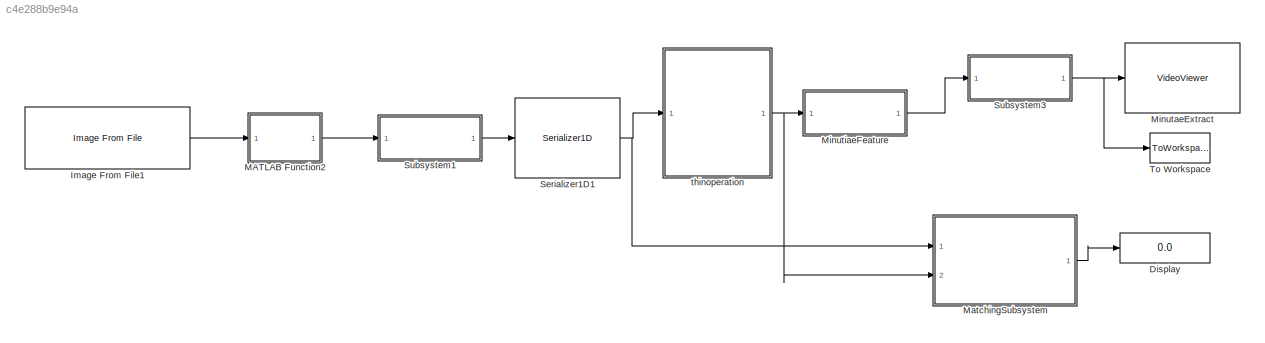
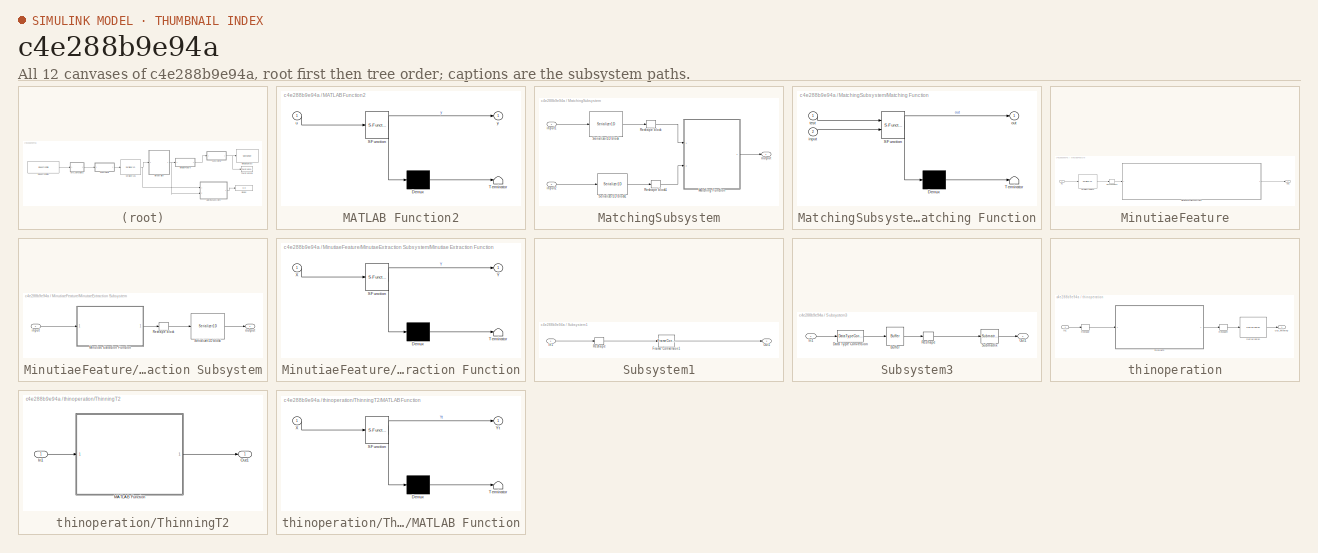
[diagram: thumbnail index - all 12 canvases of the model, root first then tree order]
MODEL slx_c4e288b9e94a
KIND model
CONFIG AbsTol = auto
CONFIG EnableMultiTasking = off
CONFIG FixedStep = auto
CONFIG MaxStep = auto
CONFIG MinStep = auto
CONFIG RelTol = 1e-3
CONFIG SampleTimeConstraint = Unconstrained
CONFIG Solver = FixedStepDiscrete
CONFIG SolverName = FixedStepDiscrete
CONFIG StartTime = 0.0
CONFIG StopTime = 1
BLOCK [Display] Display
  Decimation = 1
  Ports = [1]
BLOCK [Reference] Image From File1  REF=visionsources/Image From File
  Ports = [0, 1]
  SourceBlock = visionsources/Image From File
  SourceProductBaseCode = VP
  SourceProductName = Computer Vision System Toolbox
  SourceType = Image From File
  Tag = vipblks_nd
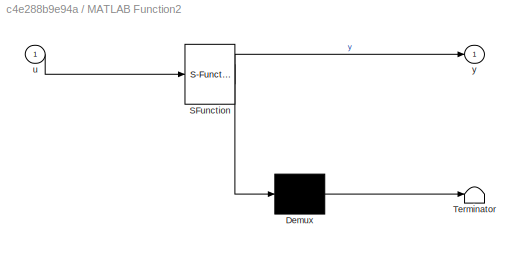
BLOCK [SubSystem] MATLAB Function2
  ErrorFcn = Stateflow.Translate.translate
  PermitHierarchicalResolution = ExplicitOnly
  Ports = [1, 1]
  RequestExecContextInheritance = off
  SFBlockType = MATLAB Function
  TreatAsAtomicUnit = on
BLOCK [Demux] MATLAB Function2/ Demux 
  Outputs = 1
  Ports = [1, 1]
BLOCK [S-Function] MATLAB Function2/ SFunction 
  EnableBusSupport = on
  FunctionName = sf_sfun
  PortCounts = [1 2]
  Ports = [1, 2]
  SFcnIsStateOwnerBlock = off
  SFunctionDeploymentMode = off
  Tag = Stateflow S-Function match_141121 1
BLOCK [Terminator] MATLAB Function2/ Terminator 
BLOCK [Inport] MATLAB Function2/u
  IconDisplay = Port number
BLOCK [Outport] MATLAB Function2/y
  IconDisplay = Port number
BLOCK [SubSystem] MatchingSubsystem
  Ports = [2, 1]
  RequestExecContextInheritance = off
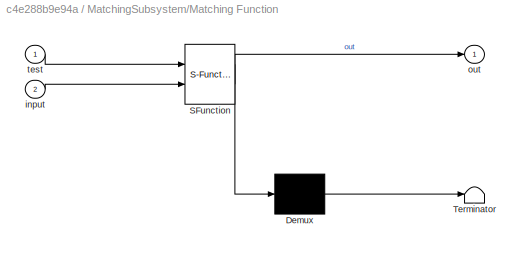
BLOCK [SubSystem] MatchingSubsystem/Matching Function
  ErrorFcn = Stateflow.Translate.translate
  PermitHierarchicalResolution = ExplicitOnly
  Ports = [2, 1]
  RequestExecContextInheritance = off
  SFBlockType = MATLAB Function
  TreatAsAtomicUnit = on
BLOCK [Demux] MatchingSubsystem/Matching Function/ Demux 
  Outputs = 1
  Ports = [1, 1]
BLOCK [S-Function] MatchingSubsystem/Matching Function/ SFunction 
  EnableBusSupport = on
  FunctionName = sf_sfun
  PortCounts = [2 2]
  Ports = [2, 2]
  SFcnIsStateOwnerBlock = off
  SFunctionDeploymentMode = off
  Tag = Stateflow S-Function match_141121 3
BLOCK [Terminator] MatchingSubsystem/Matching Function/ Terminator 
BLOCK [Inport] MatchingSubsystem/Matching Function/input
  IconDisplay = Port number
  Port = 2
BLOCK [Outport] MatchingSubsystem/Matching Function/out
  IconDisplay = Port number
BLOCK [Inport] MatchingSubsystem/Matching Function/test
  IconDisplay = Port number
BLOCK [Reshape] MatchingSubsystem/Reshape block
  OutputDimensionality = Customize
  OutputDimensions = [128,64]
  Ports = [1, 1]
BLOCK [Reshape] MatchingSubsystem/Reshape block1
  OutputDimensionality = Customize
  OutputDimensions = [128,64]
  Ports = [1, 1]
BLOCK [Reference] MatchingSubsystem/Serializer1D block  REF=hdlsllib/HDL Operations/Serializer1D
  Ports = [1, 1]
  SourceBlock = hdlsllib/HDL Operations/Serializer1D
  SourceProductBaseCode = HD
  SourceProductName = HDL Coder
  SourceType = Serializer1D
BLOCK [Reference] MatchingSubsystem/Serializer1D block1  REF=hdlsllib/HDL Operations/Serializer1D
  Ports = [1, 1]
  SourceBlock = hdlsllib/HDL Operations/Serializer1D
  SourceProductBaseCode = HD
  SourceProductName = HDL Coder
  SourceType = Serializer1D
BLOCK [Inport] MatchingSubsystem/input1
  IconDisplay = Port number
BLOCK [Inport] MatchingSubsystem/input2
  IconDisplay = Port number
  Port = 2
BLOCK [Outport] MatchingSubsystem/output
  IconDisplay = Port number
BLOCK [VideoViewer] MinutaeExtract
  FigPos = [1 1158 1920 1059]
  Ports = [1]
  ScopeSpecificationString = vipscopes.VideoViewerScopeCfg('CurrentConfiguration', extmgr.ConfigurationSet(extmgr.Configuration('Core','General UI',true),extmgr.Configuration('Core','Source UI',true),extmgr.Configuration('Sources','WiredSimulink',true),extmgr.Configuration('Visuals','Video',true),extmgr.Configuration('Tools','Image Navigation Tools',true),extmgr.Configuration('Tools','Image Tool',true),extmgr.Configuration('T...<+74ch>
  colormapValue = gray(256)
BLOCK [SubSystem] MinutiaeFeature
  Ports = [1, 1]
  RequestExecContextInheritance = off
  TreatAsAtomicUnit = on
BLOCK [Inport] MinutiaeFeature/In1
  IconDisplay = Port number
BLOCK [SubSystem] MinutiaeFeature/MinutaeExtraction Subsystem
  Ports = [1, 1]
  RequestExecContextInheritance = off
  TreatAsAtomicUnit = on
BLOCK [SubSystem] MinutiaeFeature/MinutaeExtraction Subsystem/Minutiae Extraction Function
  ErrorFcn = Stateflow.Translate.translate
  PermitHierarchicalResolution = ExplicitOnly
  Ports = [1, 1]
  RequestExecContextInheritance = off
  SFBlockType = MATLAB Function
  TreatAsAtomicUnit = on
BLOCK [Demux] MinutiaeFeature/MinutaeExtraction Subsystem/Minutiae Extraction Function/ Demux 
  Outputs = 1
  Ports = [1, 1]
BLOCK [S-Function] MinutiaeFeature/MinutaeExtraction Subsystem/Minutiae Extraction Function/ SFunction 
  EnableBusSupport = on
  FunctionName = sf_sfun
  PortCounts = [1 2]
  Ports = [1, 2]
  SFcnIsStateOwnerBlock = off
  SFunctionDeploymentMode = off
  Tag = Stateflow S-Function match_141121 4
BLOCK [Terminator] MinutiaeFeature/MinutaeExtraction Subsystem/Minutiae Extraction Function/ Terminator 
BLOCK [Inport] MinutiaeFeature/MinutaeExtraction Subsystem/Minutiae Extraction Function/X
  IconDisplay = Port number
BLOCK [Outport] MinutiaeFeature/MinutaeExtraction Subsystem/Minutiae Extraction Function/Y
  IconDisplay = Port number
BLOCK [Reshape] MinutiaeFeature/MinutaeExtraction Subsystem/Reshape block
  OutputDimensionality = Column vector (2-D)
  OutputDimensions = [128,64]
  Ports = [1, 1]
BLOCK [Reference] MinutiaeFeature/MinutaeExtraction Subsystem/Serializer1D block  REF=hdlsllib/HDL Operations/Serializer1D
  Ports = [1, 1]
  SourceBlock = hdlsllib/HDL Operations/Serializer1D
  SourceProductBaseCode = HD
  SourceProductName = HDL Coder
  SourceType = Serializer1D
BLOCK [Inport] MinutiaeFeature/MinutaeExtraction Subsystem/input
  IconDisplay = Port number
BLOCK [Outport] MinutiaeFeature/MinutaeExtraction Subsystem/output
  IconDisplay = Port number
BLOCK [Outport] MinutiaeFeature/Out1
  IconDisplay = Port number
BLOCK [Reshape] MinutiaeFeature/Reshape block
  OutputDimensionality = Customize
  OutputDimensions = [128,64]
  Ports = [1, 1]
BLOCK [Reference] MinutiaeFeature/Serializer1D block  REF=hdlsllib/HDL Operations/Serializer1D
  Ports = [1, 1]
  SourceBlock = hdlsllib/HDL Operations/Serializer1D
  SourceProductBaseCode = HD
  SourceProductName = HDL Coder
  SourceType = Serializer1D
BLOCK [Reference] Serializer1D1  REF=hdlsllib/HDL Operations/Serializer1D
  Ports = [1, 1]
  SourceBlock = hdlsllib/HDL Operations/Serializer1D
  SourceProductBaseCode = HD
  SourceProductName = HDL Coder
  SourceType = Serializer1D
BLOCK [SubSystem] Subsystem1
  Ports = [1, 1]
  RequestExecContextInheritance = off
BLOCK [FrameConversion] Subsystem1/Frame Conversion1
  OutFrame = Sample-based
  Ports = [1, 1]
BLOCK [Inport] Subsystem1/In1
  IconDisplay = Port number
BLOCK [Outport] Subsystem1/Out1
  IconDisplay = Port number
BLOCK [Reshape] Subsystem1/Reshape
  Ports = [1, 1]
BLOCK [SubSystem] Subsystem3
  Ports = [1, 1]
  RequestExecContextInheritance = off
BLOCK [Buffer] Subsystem3/Buffer
  N = 8192
  OutputFrames = off
BLOCK [DataTypeConversion] Subsystem3/Data Type Conversion
  RndMeth = Floor
  SaturateOnIntegerOverflow = off
BLOCK [Inport] Subsystem3/In1
  IconDisplay = Port number
BLOCK [Outport] Subsystem3/Out1
  IconDisplay = Port number
BLOCK [Reshape] Subsystem3/Reshape
  OutputDimensionality = Customize
  OutputDimensions = [128,64]
  Ports = [1, 1]
BLOCK [Reference] Subsystem3/Submatrix  REF=dspmtrx3/Submatrix
  Ports = [1, 1]
  SourceBlock = dspmtrx3/Submatrix
  SourceProductBaseCode = DS
  SourceProductName = DSP System Toolbox
  SourceType = Submatrix
BLOCK [ToWorkspace] To Workspace
  FixptAsFi = on
  MaxDataPoints = inf
  Ports = [1]
  SampleTime = -1
  Save2DSignal = 2-D array (concatenate along first dimension)
  VariableName = Minutiae
BLOCK [SubSystem] thinoperation
  Ports = [1, 1]
  RequestExecContextInheritance = off
  TreatAsAtomicUnit = on
BLOCK [Inport] thinoperation/In1
  IconDisplay = Port number
BLOCK [Outport] thinoperation/Out_Thinning
  IconDisplay = Port number
BLOCK [Reshape] thinoperation/Reshape
  OutputDimensionality = Customize
  OutputDimensions = [128,64]
  Ports = [1, 1]
BLOCK [Reshape] thinoperation/Reshape4
  OutputDimensionality = Column vector (2-D)
  OutputDimensions = [128,64]
  Ports = [1, 1]
BLOCK [Reference] thinoperation/Serializer1D  REF=hdlsllib/HDL Operations/Serializer1D
  Ports = [1, 1]
  SourceBlock = hdlsllib/HDL Operations/Serializer1D
  SourceProductBaseCode = HD
  SourceProductName = HDL Coder
  SourceType = Serializer1D
BLOCK [SubSystem] thinoperation/ThinningT2
  Ports = [1, 1]
  RequestExecContextInheritance = off
  TreatAsAtomicUnit = on
BLOCK [Inport] thinoperation/ThinningT2/In1
  IconDisplay = Port number
BLOCK [SubSystem] thinoperation/ThinningT2/MATLAB Function
  ErrorFcn = Stateflow.Translate.translate
  PermitHierarchicalResolution = ExplicitOnly
  Ports = [1, 1]
  RequestExecContextInheritance = off
  SFBlockType = MATLAB Function
  TreatAsAtomicUnit = on
BLOCK [Demux] thinoperation/ThinningT2/MATLAB Function/ Demux 
  Outputs = 1
  Ports = [1, 1]
BLOCK [S-Function] thinoperation/ThinningT2/MATLAB Function/ SFunction 
  EnableBusSupport = on
  FunctionName = sf_sfun
  PortCounts = [1 2]
  Ports = [1, 2]
  SFcnIsStateOwnerBlock = off
  SFunctionDeploymentMode = off
  Tag = Stateflow S-Function match_141121 2
BLOCK [Terminator] thinoperation/ThinningT2/MATLAB Function/ Terminator 
BLOCK [Inport] thinoperation/ThinningT2/MATLAB Function/X
  IconDisplay = Port number
BLOCK [Outport] thinoperation/ThinningT2/MATLAB Function/Yt
  IconDisplay = Port number
BLOCK [Outport] thinoperation/ThinningT2/Out1
  IconDisplay = Port number
LINE Image From File1:1 -> MATLAB Function2:1
LINE MATLAB Function2:1 -> Subsystem1:1
LINE MatchingSubsystem/Matching Function:1 -> MatchingSubsystem/output:1
LINE MatchingSubsystem/Reshape block1:1 -> MatchingSubsystem/Matching Function:2
LINE MatchingSubsystem/Reshape block:1 -> MatchingSubsystem/Matching Function:1
LINE MatchingSubsystem/Serializer1D block1:1 -> MatchingSubsystem/Reshape block1:1
LINE MatchingSubsystem/Serializer1D block:1 -> MatchingSubsystem/Reshape block:1
LINE MatchingSubsystem/input1:1 -> MatchingSubsystem/Serializer1D block:1
LINE MatchingSubsystem/input2:1 -> MatchingSubsystem/Serializer1D block1:1
LINE MatchingSubsystem:1 -> Display:1
LINE MinutiaeFeature/In1:1 -> MinutiaeFeature/Serializer1D block:1
LINE MinutiaeFeature/MinutaeExtraction Subsystem/Minutiae Extraction Function:1 -> MinutiaeFeature/MinutaeExtraction Subsystem/Reshape block:1
LINE MinutiaeFeature/MinutaeExtraction Subsystem/Reshape block:1 -> MinutiaeFeature/MinutaeExtraction Subsystem/Serializer1D block:1
LINE MinutiaeFeature/MinutaeExtraction Subsystem/Serializer1D block:1 -> MinutiaeFeature/MinutaeExtraction Subsystem/output:1
LINE MinutiaeFeature/MinutaeExtraction Subsystem/input:1 -> MinutiaeFeature/MinutaeExtraction Subsystem/Minutiae Extraction Function:1
LINE MinutiaeFeature/MinutaeExtraction Subsystem:1 -> MinutiaeFeature/Out1:1
LINE MinutiaeFeature/Reshape block:1 -> MinutiaeFeature/MinutaeExtraction Subsystem:1
LINE MinutiaeFeature/Serializer1D block:1 -> MinutiaeFeature/Reshape block:1
LINE MinutiaeFeature:1 -> Subsystem3:1
NET Serializer1D1:1 -> MatchingSubsystem:1, thinoperation:1
LINE Subsystem1/Frame Conversion1:1 -> Subsystem1/Out1:1
LINE Subsystem1/In1:1 -> Subsystem1/Reshape:1
LINE Subsystem1/Reshape:1 -> Subsystem1/Frame Conversion1:1
LINE Subsystem1:1 -> Serializer1D1:1
LINE Subsystem3/Buffer:1 -> Subsystem3/Reshape:1
LINE Subsystem3/Data Type Conversion:1 -> Subsystem3/Buffer:1
LINE Subsystem3/In1:1 -> Subsystem3/Data Type Conversion:1
LINE Subsystem3/Reshape:1 -> Subsystem3/Submatrix:1
LINE Subsystem3/Submatrix:1 -> Subsystem3/Out1:1
NET Subsystem3:1 -> MinutaeExtract:1, To Workspace:1
LINE thinoperation/In1:1 -> thinoperation/Reshape:1
LINE thinoperation/Reshape4:1 -> thinoperation/Serializer1D:1
LINE thinoperation/Reshape:1 -> thinoperation/ThinningT2:1
LINE thinoperation/Serializer1D:1 -> thinoperation/Out_Thinning:1
LINE thinoperation/ThinningT2/In1:1 -> thinoperation/ThinningT2/MATLAB Function:1
LINE thinoperation/ThinningT2/MATLAB Function:1 -> thinoperation/ThinningT2/Out1:1
LINE thinoperation/ThinningT2:1 -> thinoperation/Reshape4:1
NET thinoperation:1 -> MatchingSubsystem:2, MinutiaeFeature:1
note: NET lines group one-source signal fan-out (src -> all destinations, sorted); 1:1 wires keep LINE
CHART MATLAB Function2 states=1 transitions=1
  STATE_LABEL 'eML_blk_kernel()'
  STATE_LABEL 'SCRIPT:\nfunction y = fcn(u)\n%#codegen\n%i = rgb2gray(u);\nb = u(100:227,150:213);\ny = imbinarize(b);\n%y = y(100:227,150:213);\n%y = imbinarize(r);\n\n'
CHART thinoperation/ThinningT2/MATLAB Function states=1 transitions=1
  STATE_LABEL 'eML_blk_kernel()'
  STATE_LABEL "SCRIPT:\nfunction Yt=thinningTh(X)\n%img = imread ('2_4.jpg'); \n%Xr = rgb2gray(img);\n%%%X = imbinarize(Xr);\n%X = X(1:128,1:64);\n[M,N]=size(X);\nYt = false(M,N);\nY=false(M,N,20);\nZ=false(M,N,20);\nY(:,:,1)=X;\nZ(:,:,1)=X;\nfor k=2:20\n    Y(:,:,k)=Y(:,:,k-1);\n    for i=2:M-1\n        for j=2:N-1\n            y11=Y(i-1,j-1,k);\n            y12=Y(i-1,j,k);\n            y13=Y(i-1,j+1,k);\n            y21=Y(i,j-1,...<+1269ch>"
CHART MatchingSubsystem/Matching Function states=1 transitions=1
  STATE_LABEL 'eML_blk_kernel()'
  STATE_LABEL 'SCRIPT:\nfunction out = match(test, input)\n%test = zeros(rows,col);\n%input = zeros(rows,col);\n%[row,col]= size(input);\ntest = uint8(test);\ninput = uint8(input);\nfor i=1:128\n    for j=1:64\n        %input(i,j);\n        if test == input\n            out = 1;\n        else\n            out = 0;\n        end\n    end\nend\nend\n\n'
CHART MinutiaeFeature/MinutaeExtraction Subsystem/Minutiae Extraction Function states=1 transitions=1
  STATE_LABEL 'eML_blk_kernel()'
  STATE_LABEL "SCRIPT:\nfunction Y=minuextractT(X)\n%img = imread ('101_7.tif'); \n%Xr = rgb2gray(img);\n%Xt = imbinarize(img);\n%X=~bwmorph(Xt,'thin',Inf);\n[M,N]=size(X);\n%mi(:,:)=X;\nY=false(M,N);\nY(:,:)=X;\n%[M,N]=size(X);\nmi=false(M,N);\n\nfor i=2:M-1\n    for j=2:N-1\n        % * * * y11 y12 y13\n        % * @ * y21 y22 y23\n        % * * * y31 y32 y33\n        y11=Y(i-1,j-1);\n        y12=Y(i-1,j);\n        y13=Y(i-1,j+1)...<+3608ch>"
